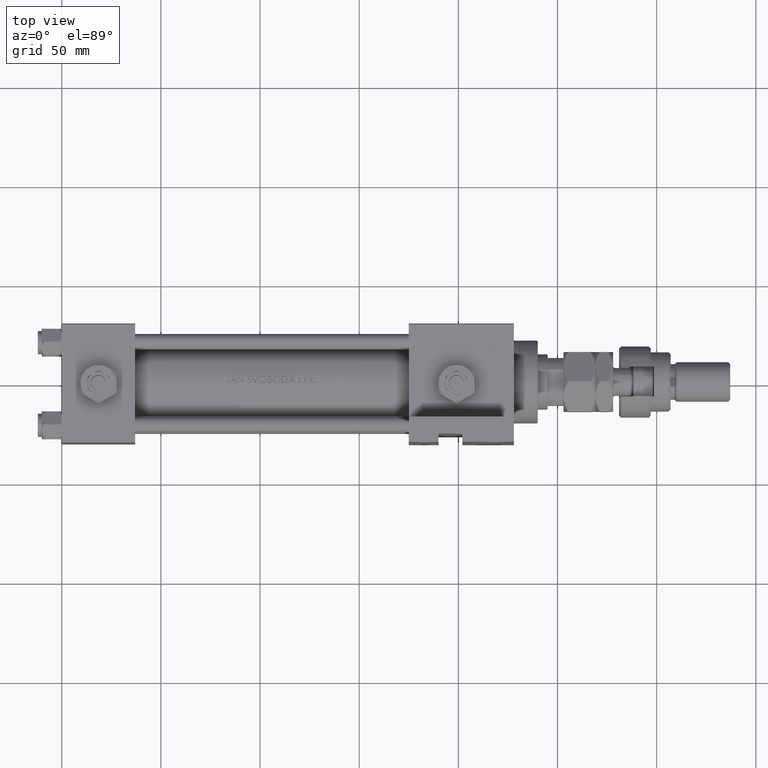
[diagram: clean part render]
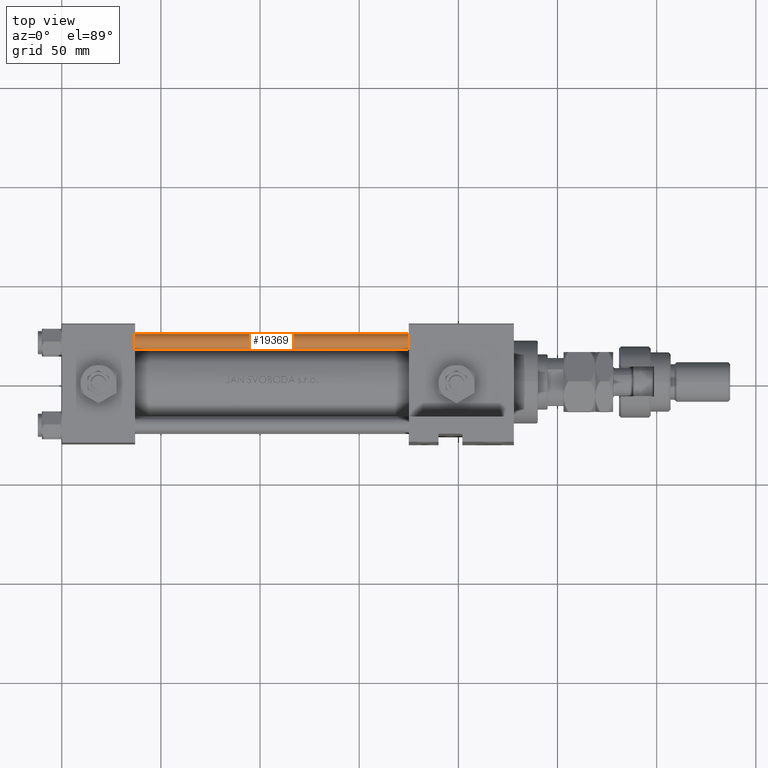
[diagram: same view with one face highlighted and labeled with its STEP entity id]
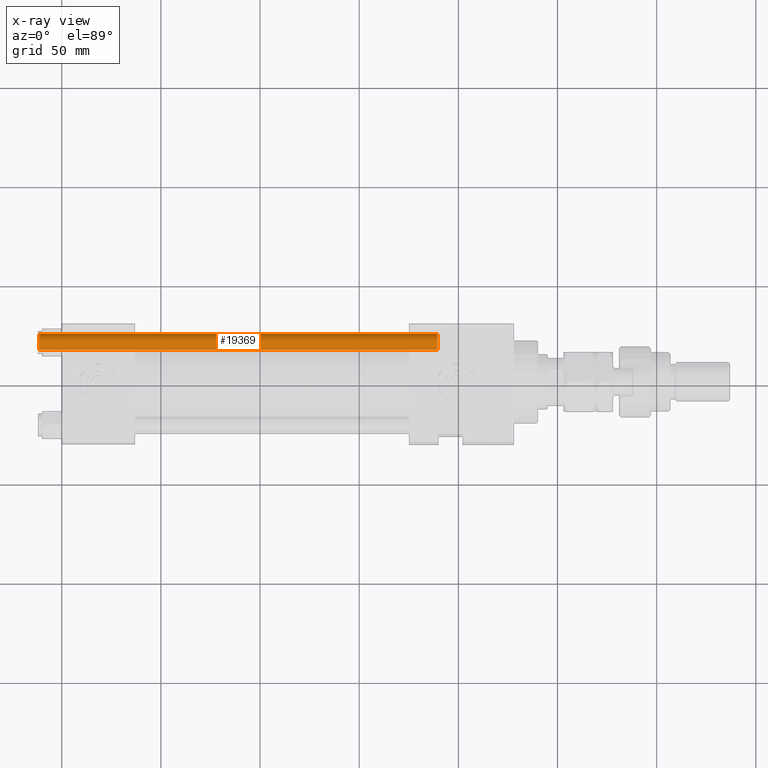
[diagram: x-ray of the same camera — body ghosted, the highlighted face saturated]
A machine part, top view. The second image highlights one B-rep face of the part: STEP entity #19369.
The next image is the same camera in x-ray: the body ghosted, the highlighted face saturated — about 0% of this face is hidden behind the body in this view.
In plain terms, the highlighted cylindrical surface (edge-blend (fillet) strip) has radius 4 mm, axis along (1, -0, 0).
Its self-contained STEP definition (entity closure, byte-faithful):
#271 = DIRECTION ( 'NONE',  ( -0.000000000000000000, -0.000000000000000000, -1.000000000000000000 ) ) ;
#3564 = FACE_OUTER_BOUND ( 'NONE', #49944, .T. ) ;
#3688 = DIRECTION ( 'NONE',  ( -0.000000000000000000, -0.000000000000000000, 1.000000000000000000 ) ) ;
#5733 = EDGE_CURVE ( 'NONE', #51175, #32562, #18214, .T. ) ;
#6460 = CARTESIAN_POINT ( 'NONE',  ( 4.000000000000000000, 4.898587196589412829E-16, 201.5000000000000000 ) ) ;
#8238 = CARTESIAN_POINT ( 'NONE',  ( -4.000000000000000000, 0.000000000000000000, 201.5000000000000000 ) ) ;
#9063 = CARTESIAN_POINT ( 'NONE',  ( 0.000000000000000000, 0.000000000000000000, 201.5000000000000000 ) ) ;
#9753 = ORIENTED_EDGE ( 'NONE', *, *, #50071, .T. ) ;
#11168 = CIRCLE ( 'NONE', #36302, 4.000000000000000000 ) ;
#11806 = CARTESIAN_POINT ( 'NONE',  ( 0.000000000000000000, 0.000000000000000000, 0.5000000000000004441 ) ) ;
#12696 = EDGE_CURVE ( 'NONE', #39482, #32562, #42551, .T. ) ;
#16789 = DIRECTION ( 'NONE',  ( -1.000000000000000000, 0.000000000000000000, 0.000000000000000000 ) ) ;
#18214 = CIRCLE ( 'NONE', #35544, 4.000000000000000000 ) ;
#19327 = VECTOR ( 'NONE', #50933, 1000.000000000000000 ) ;
#19369 = ADVANCED_FACE ( 'NONE', ( #3564 ), #20066, .T. ) ;
#19473 = AXIS2_PLACEMENT_3D ( 'NONE', #41747, #271, #16789 ) ;
#19888 = ORIENTED_EDGE ( 'NONE', *, *, #33203, .T. ) ;
#20066 = CYLINDRICAL_SURFACE ( 'NONE', #19473, 4.000000000000000000 ) ;
#20868 = CARTESIAN_POINT ( 'NONE',  ( -4.000000000000000000, 0.000000000000000000, 0.5000000000000004441 ) ) ;
#21304 = ORIENTED_EDGE ( 'NONE', *, *, #5733, .T. ) ;
#21652 = CARTESIAN_POINT ( 'NONE',  ( 4.000000000000000000, 4.898587196589412829E-16, 202.0000000000000000 ) ) ;
#24071 = VERTEX_POINT ( 'NONE', #8238 ) ;
#25589 = DIRECTION ( 'NONE',  ( 0.000000000000000000, 0.000000000000000000, -1.000000000000000000 ) ) ;
#27050 = CARTESIAN_POINT ( 'NONE',  ( 4.000000000000000000, 4.898587196589412829E-16, 0.5000000000000004441 ) ) ;
#31282 = DIRECTION ( 'NONE',  ( 1.000000000000000000, 0.000000000000000000, 0.000000000000000000 ) ) ;
#32562 = VERTEX_POINT ( 'NONE', #27050 ) ;
#33203 = EDGE_CURVE ( 'NONE', #39482, #24071, #11168, .T. ) ;
#35544 = AXIS2_PLACEMENT_3D ( 'NONE', #11806, #3688, #49213 ) ;
#36302 = AXIS2_PLACEMENT_3D ( 'NONE', #9063, #25589, #31282 ) ;
#37092 = DIRECTION ( 'NONE',  ( -0.000000000000000000, -0.000000000000000000, -1.000000000000000000 ) ) ;
#39482 = VERTEX_POINT ( 'NONE', #6460 ) ;
#41142 = CARTESIAN_POINT ( 'NONE',  ( -4.000000000000000000, 0.000000000000000000, 202.0000000000000000 ) ) ;
#41747 = CARTESIAN_POINT ( 'NONE',  ( 0.000000000000000000, 0.000000000000000000, 202.0000000000000000 ) ) ;
#42551 = LINE ( 'NONE', #21652, #19327 ) ;
#45227 = LINE ( 'NONE', #41142, #50973 ) ;
#46185 = ORIENTED_EDGE ( 'NONE', *, *, #12696, .F. ) ;
#49213 = DIRECTION ( 'NONE',  ( 1.000000000000000000, 0.000000000000000000, 0.000000000000000000 ) ) ;
#49944 = EDGE_LOOP ( 'NONE', ( #46185, #19888, #9753, #21304 ) ) ;
#50071 = EDGE_CURVE ( 'NONE', #24071, #51175, #45227, .T. ) ;
#50933 = DIRECTION ( 'NONE',  ( -0.000000000000000000, -0.000000000000000000, -1.000000000000000000 ) ) ;
#50973 = VECTOR ( 'NONE', #37092, 1000.000000000000000 ) ;
#51175 = VERTEX_POINT ( 'NONE', #20868 ) ;